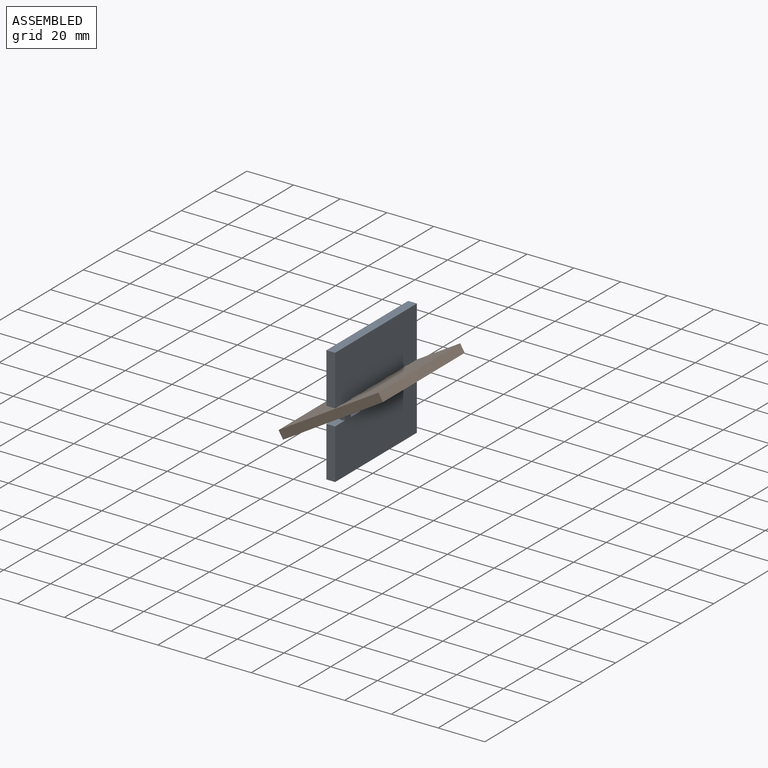
[diagram: assembled view]
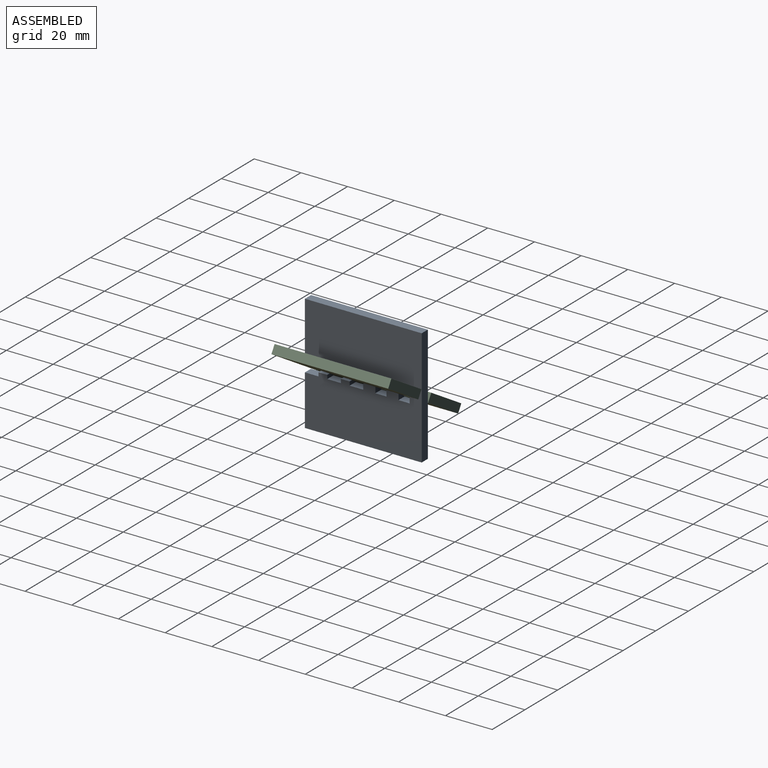
[diagram: assembled view, second angle]
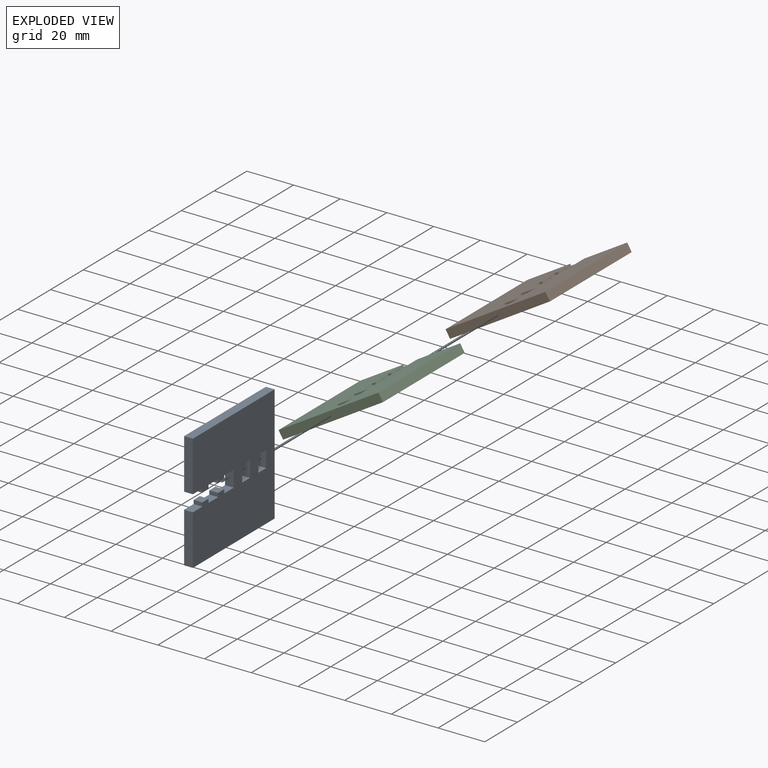
[diagram: exploded view]
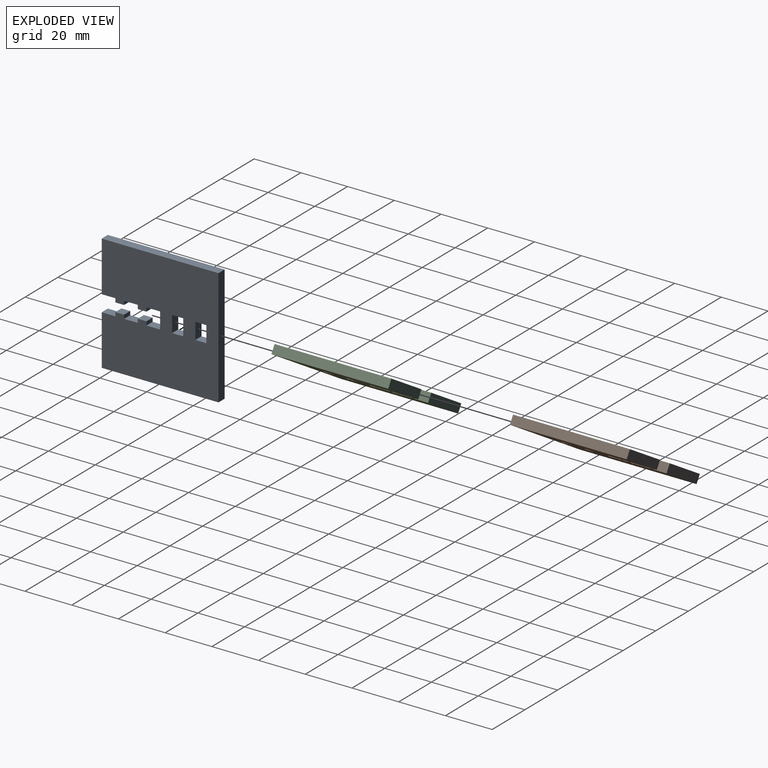
[diagram: exploded view, second angle]
ASSEMBLY  parts=3 mates=2
PART A: 34 faces, bbox 50x50x3.8 mm
  f0: plane 50x50mm, normal (0,0,1), area 2282.9mm2, adj f2,f3,f4,f5,f6,f7,f8,f9
  f1: plane 50x50mm, normal (0,0,-1), area 2282.9mm2, adj f2,f3,f4,f5,f6,f7,f8,f9
  f2: plane 7x3.75mm, normal (0,1,0), area 26.2mm2, adj f0,f1,f3,f15
  f3: plane 5.83x3.75mm, normal (1,0,0), area 21.9mm2, adj f0,f1,f2,f4
  f4: plane 3.75x1.63mm, normal (0,-1,0), area 6.1mm2, adj f0,f1,f3,f5
  f5: plane 3.75x3.75mm, normal (1,0,0), area 14.1mm2, adj f0,f1,f4,f6
  f6: plane 3.75x1.63mm, normal (0,1,0), area 6.1mm2, adj f0,f1,f5,f7
  f7: plane 5.83x3.75mm, normal (1,0,0), area 21.9mm2, adj f0,f1,f6,f8
  f8: plane 3.75x1.63mm, normal (0,-1,0), area 6.1mm2, adj f0,f1,f7,f9
  f9: plane 3.75x3.75mm, normal (1,0,0), area 14.1mm2, adj f0,f1,f8,f10
  f10: plane 3.75x1.63mm, normal (0,1,0), area 6.1mm2, adj f0,f1,f9,f11
  f11: plane 5.83x3.75mm, normal (1,0,0), area 21.9mm2, adj f0,f1,f10,f12
  f12: plane 21.5x3.75mm, normal (0,1,0), area 80.6mm2, adj f0,f1,f11,f13
  f13: plane 50x3.75mm, normal (-1,0,0), area 187.5mm2, adj f0,f1,f12,f14
  f14: plane 50x3.75mm, normal (0,-1,0), area 187.5mm2, adj f0,f1,f13,f25
  f15: plane 5.83x3.75mm, normal (-1,0,0), area 21.9mm2, adj f0,f1,f2,f16
  f16: plane 3.75x1.63mm, normal (0,-1,0), area 6.1mm2, adj f0,f1,f15,f17
  f17: plane 3.75x3.75mm, normal (-1,0,0), area 14.1mm2, adj f0,f1,f16,f18
  f18: plane 3.75x1.63mm, normal (0,1,0), area 6.1mm2, adj f0,f1,f17,f19
  f19: plane 5.83x3.75mm, normal (-1,0,0), area 21.9mm2, adj f0,f1,f18,f20
  f20: plane 3.75x1.63mm, normal (0,-1,0), area 6.1mm2, adj f0,f1,f19,f21
  f21: plane 3.75x3.75mm, normal (-1,0,0), area 14.1mm2, adj f0,f1,f20,f22
  f22: plane 3.75x1.63mm, normal (0,1,0), area 6.1mm2, adj f0,f1,f21,f23
  f23: plane 5.83x3.75mm, normal (-1,0,0), area 21.9mm2, adj f0,f1,f22,f24
  f24: plane 21.5x3.75mm, normal (0,1,0), area 80.6mm2, adj f0,f1,f23,f25
  f25: plane 50x3.75mm, normal (1,0,0), area 187.5mm2, adj f0,f1,f14,f24
  f26: plane 7x3.75mm, normal (0,1,0), area 26.3mm2, adj f0,f1,f27,f29
  f27: plane 4.75x3.75mm, normal (-1,0,0), area 17.8mm2, adj f0,f1,f26,f28
  f28: plane 7x3.75mm, normal (0,-1,0), area 26.3mm2, adj f0,f1,f27,f29
  f29: plane 4.75x3.75mm, normal (1,0,0), area 17.8mm2, adj f0,f1,f26,f28
  f30: plane 7x3.75mm, normal (0,1,0), area 26.3mm2, adj f0,f1,f31,f33
  f31: plane 4.75x3.75mm, normal (-1,0,0), area 17.8mm2, adj f0,f1,f30,f32
  f32: plane 7x3.75mm, normal (0,-1,0), area 26.3mm2, adj f0,f1,f31,f33
  f33: plane 4.75x3.75mm, normal (1,0,0), area 17.8mm2, adj f0,f1,f30,f32
PART B: same geometry as A
PART C: same geometry as A
PLACE A rot(axis=(0.71,0,-0.71),180deg) t=(-6.95,-10.76,-10.11)mm fixed
PLACE B rot(axis=(0,1,0),148.8deg) t=(-6.95,-10.76,-10.11)mm
PLACE C rot(axis=(0,1,0),148.8deg) t=(-6.95,-10.76,-10.11)mm
MATE fastened C.f2 <-> B.f2  axis (0,1,0) through (-6.95,-10.76,-10.11)mm
MATE revolute A.f2 <-> C.f2  axis (0,-1,0) through (-6.95,-10.76,-10.11)mm
